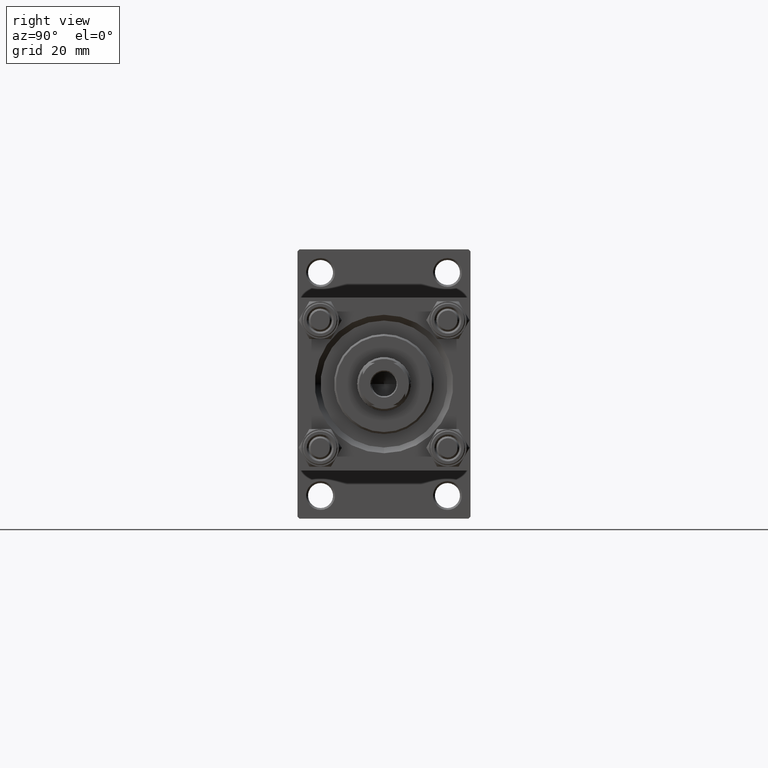
[diagram: clean part render]
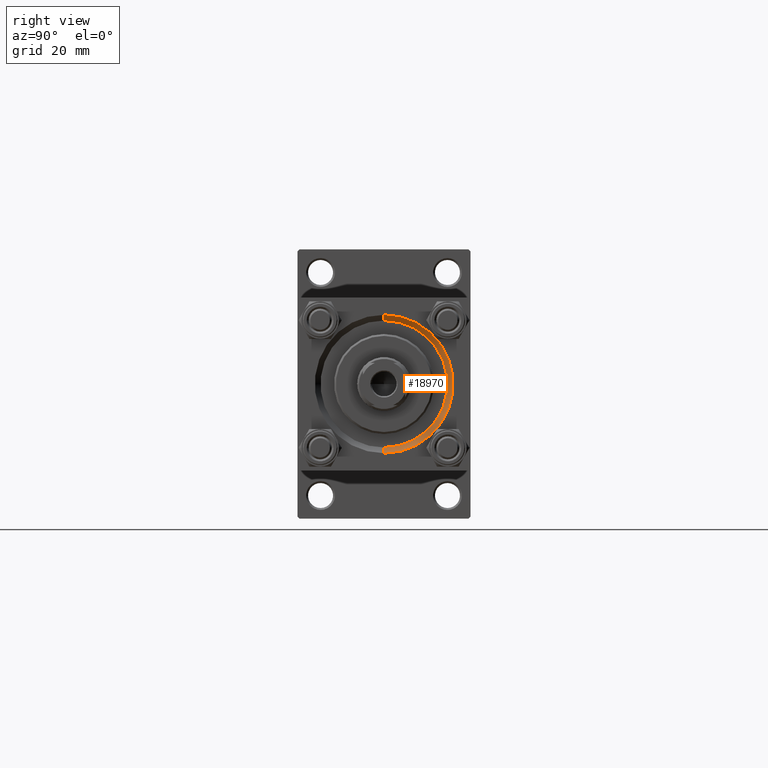
[diagram: same view with one face highlighted and labeled with its STEP entity id]
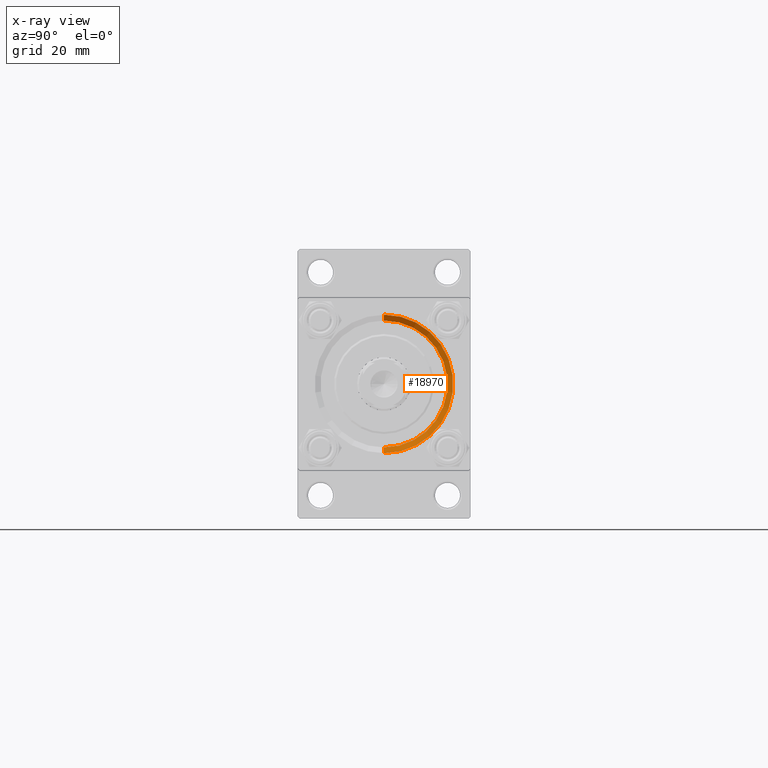
[diagram: x-ray of the same camera — body ghosted, the highlighted face saturated]
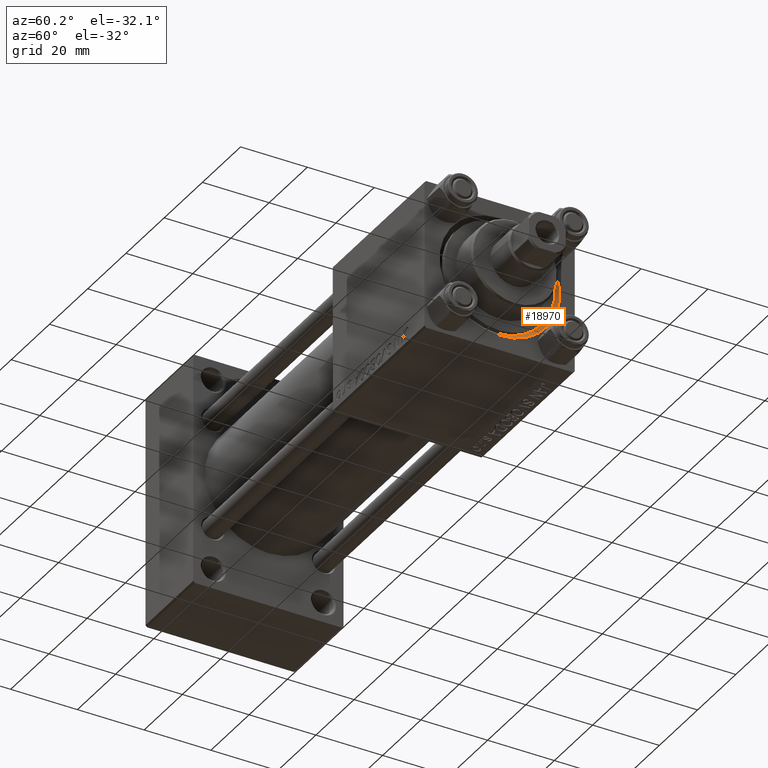
[diagram: same view with one face highlighted and labeled with its STEP entity id]
A machine part, right view. The second image highlights one B-rep face of the part: STEP entity #18970.
The next image is the same camera in x-ray: the body ghosted, the highlighted face saturated — about 0% of this face is hidden behind the body in this view.
A second angle (auxiliary view) of the same face is appended — the face is thin or edge-on in the first view.
In plain terms, the highlighted conical surface has half-angle 45 deg.
Its self-contained STEP definition (entity closure, byte-faithful):
#2012 = VECTOR ( 'NONE', #32945, 1000.000000000000114 ) ;
#2280 = DIRECTION ( 'NONE',  ( 0.000000000000000000, 0.000000000000000000, -1.000000000000000000 ) ) ;
#3112 = EDGE_CURVE ( 'NONE', #7318, #43543, #22341, .T. ) ;
#6030 = CARTESIAN_POINT ( 'NONE',  ( 146.0000000000000284, 0.000000000000000000, 0.000000000000000000 ) ) ;
#6061 = CARTESIAN_POINT ( 'NONE',  ( 144.5000000000000853, 0.000000000000000000, 0.000000000000000000 ) ) ;
#7151 = ORIENTED_EDGE ( 'NONE', *, *, #12522, .T. ) ;
#7318 = VERTEX_POINT ( 'NONE', #24006 ) ;
#8294 = DIRECTION ( 'NONE',  ( 0.7071067811865441310, 0.000000000000000000, -0.7071067811865507924 ) ) ;
#10104 = DIRECTION ( 'NONE',  ( 1.000000000000000000, 0.000000000000000000, 0.000000000000000000 ) ) ;
#10640 = CIRCLE ( 'NONE', #17110, 16.50000000000000000 ) ;
#10875 = CARTESIAN_POINT ( 'NONE',  ( 144.5000000000000853, 0.000000000000000000, 0.000000000000000000 ) ) ;
#11125 = DIRECTION ( 'NONE',  ( 0.000000000000000000, 0.000000000000000000, 1.000000000000000000 ) ) ;
#12522 = EDGE_CURVE ( 'NONE', #43466, #32275, #46694, .T. ) ;
#12841 = CARTESIAN_POINT ( 'NONE',  ( 144.5000000000000853, 0.000000000000000000, -16.50000000000000000 ) ) ;
#17110 = AXIS2_PLACEMENT_3D ( 'NONE', #10875, #18957, #11125 ) ;
#17907 = CARTESIAN_POINT ( 'NONE',  ( 146.0000000000000284, 0.000000000000000000, -17.99999999999996092 ) ) ;
#18957 = DIRECTION ( 'NONE',  ( 1.000000000000000000, 0.000000000000000000, 0.000000000000000000 ) ) ;
#18970 = ADVANCED_FACE ( 'NONE', ( #39910 ), #47631, .F. ) ;
#22341 = LINE ( 'NONE', #40518, #2012 ) ;
#24006 = CARTESIAN_POINT ( 'NONE',  ( 144.5000000000000853, 2.020667218593133100E-15, 16.50000000000000000 ) ) ;
#27689 = ORIENTED_EDGE ( 'NONE', *, *, #3112, .F. ) ;
#29865 = AXIS2_PLACEMENT_3D ( 'NONE', #6061, #10104, #2280 ) ;
#32259 = EDGE_CURVE ( 'NONE', #43543, #32275, #34982, .T. ) ;
#32275 = VERTEX_POINT ( 'NONE', #17907 ) ;
#32945 = DIRECTION ( 'NONE',  ( 0.7071067811865441310, 8.659560562354972301E-17, 0.7071067811865507924 ) ) ;
#33039 = DIRECTION ( 'NONE',  ( -1.000000000000000000, 0.000000000000000000, -0.000000000000000000 ) ) ;
#34982 = CIRCLE ( 'NONE', #41437, 17.99999999999996092 ) ;
#35635 = EDGE_CURVE ( 'NONE', #43466, #7318, #10640, .T. ) ;
#37728 = VECTOR ( 'NONE', #8294, 1000.000000000000114 ) ;
#38562 = CARTESIAN_POINT ( 'NONE',  ( 144.5000000000000853, 0.000000000000000000, -16.50000000000000000 ) ) ;
#38655 = ORIENTED_EDGE ( 'NONE', *, *, #32259, .F. ) ;
#39556 = CARTESIAN_POINT ( 'NONE',  ( 146.0000000000000284, 2.204364238465231089E-15, 17.99999999999996092 ) ) ;
#39910 = FACE_OUTER_BOUND ( 'NONE', #43304, .T. ) ;
#40518 = CARTESIAN_POINT ( 'NONE',  ( 144.5000000000000853, 2.020667218593133100E-15, 16.50000000000000000 ) ) ;
#41437 = AXIS2_PLACEMENT_3D ( 'NONE', #6030, #33039, #44409 ) ;
#43304 = EDGE_LOOP ( 'NONE', ( #27689, #45658, #7151, #38655 ) ) ;
#43466 = VERTEX_POINT ( 'NONE', #38562 ) ;
#43543 = VERTEX_POINT ( 'NONE', #39556 ) ;
#44409 = DIRECTION ( 'NONE',  ( 0.000000000000000000, 0.000000000000000000, 1.000000000000000000 ) ) ;
#45658 = ORIENTED_EDGE ( 'NONE', *, *, #35635, .F. ) ;
#46694 = LINE ( 'NONE', #12841, #37728 ) ;
#47631 = CONICAL_SURFACE ( 'NONE', #29865, 16.50000000000000000, 0.7853981633974529419 ) ;